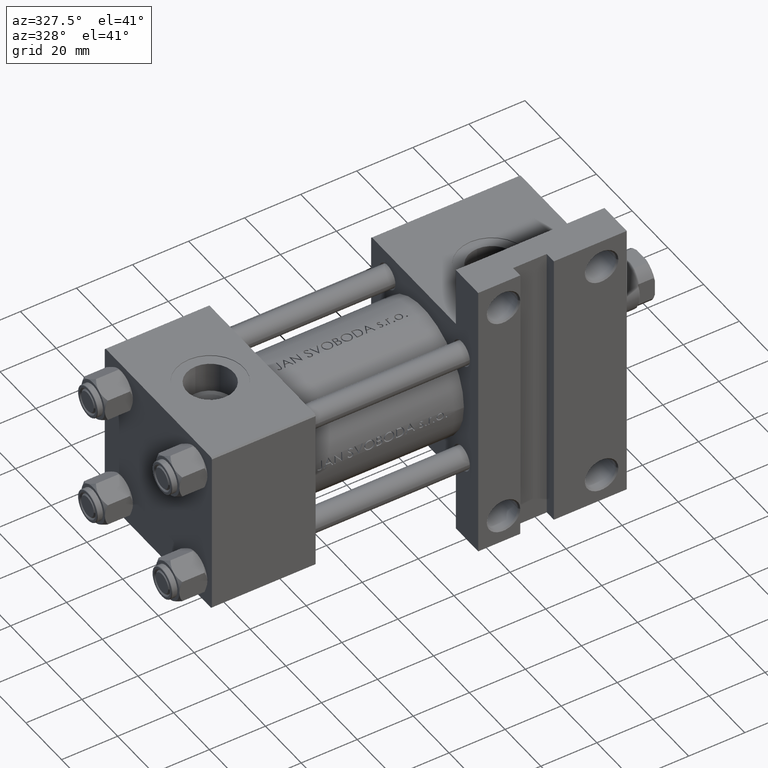
[diagram: clean part render]
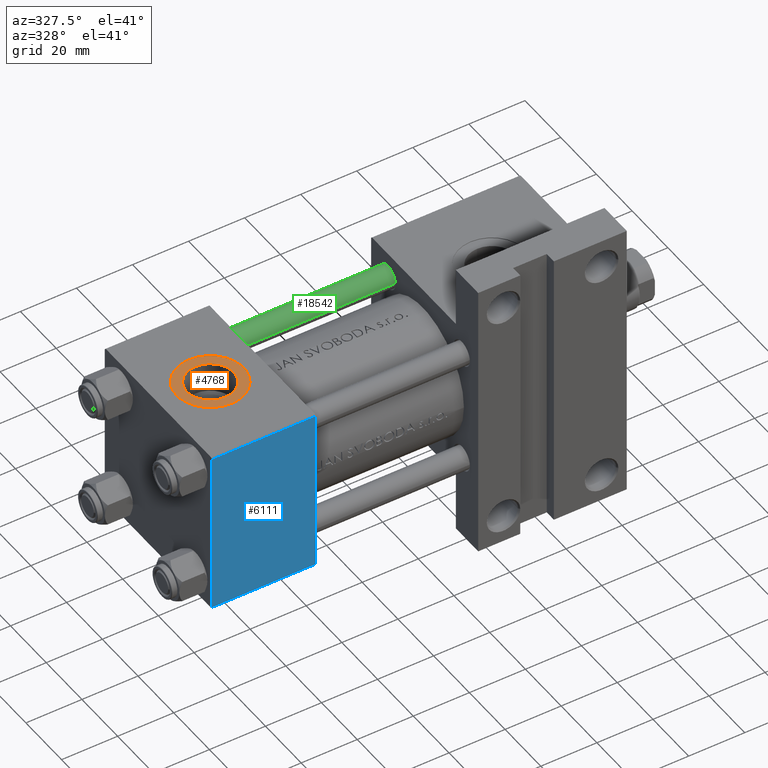
[diagram: same view with three faces highlighted in distinct colors, each labeled with its STEP entity id]
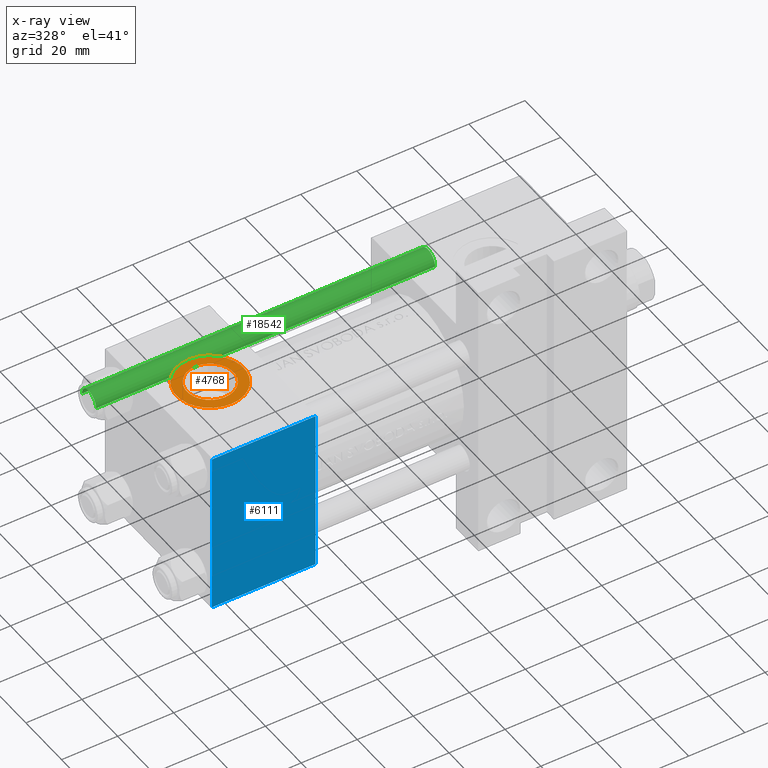
[diagram: x-ray of the same camera — body ghosted, the three highlighted faces saturated]
A machine part, auxiliary view with three faces highlighted in distinct colors.
The next image is the same camera in x-ray (body ghosted, the three faces saturated) — at least one of them is partly hidden behind the body in this view.
Their STEP definitions:

[orange] entity #4768 — the highlighted planar face has unit normal (0, -0, 1).
#182 = CARTESIAN_POINT ( 'NONE',  ( 18.50000000000000000, -29.80000000000000071, 1.734723475976807403E-17 ) ) ;
#230 = FACE_OUTER_BOUND ( 'NONE', #27709, .T. ) ;
#1417 = AXIS2_PLACEMENT_3D ( 'NONE', #21328, #43987, #12115 ) ;
#1943 = DIRECTION ( 'NONE',  ( 0.000000000000000000, -1.000000000000000000, -8.673617379884036705E-17 ) ) ;
#2434 = CARTESIAN_POINT ( 'NONE',  ( 18.50000000000000000, -29.80000000000000071, 1.734723475976808635E-17 ) ) ;
#4768 = ADVANCED_FACE ( 'NONE', ( #12323, #230 ), #15774, .T. ) ;
#4837 = EDGE_CURVE ( 'NONE', #42961, #33779, #38907, .T. ) ;
#4880 = DIRECTION ( 'NONE',  ( 0.000000000000000000, -1.000000000000000000, -8.673617379884036705E-17 ) ) ;
#6686 = CARTESIAN_POINT ( 'NONE',  ( 18.50000000000000000, -29.80000000000000071, -8.330000000000001847 ) ) ;
#10150 = DIRECTION ( 'NONE',  ( 0.000000000000000000, -1.000000000000000000, -8.673617379884036705E-17 ) ) ;
#12035 = DIRECTION ( 'NONE',  ( 0.000000000000000000, 0.000000000000000000, -1.000000000000000000 ) ) ;
#12115 = DIRECTION ( 'NONE',  ( 0.000000000000000000, 0.000000000000000000, -1.000000000000000000 ) ) ;
#12323 = FACE_BOUND ( 'NONE', #16380, .T. ) ;
#14409 = CIRCLE ( 'NONE', #37232, 12.00000000000000178 ) ;
#15774 = PLANE ( 'NONE',  #16867 ) ;
#16380 = EDGE_LOOP ( 'NONE', ( #30713, #40806 ) ) ;
#16751 = DIRECTION ( 'NONE',  ( 0.000000000000000000, 0.000000000000000000, -1.000000000000000000 ) ) ;
#16867 = AXIS2_PLACEMENT_3D ( 'NONE', #31296, #45576, #34985 ) ;
#21214 = AXIS2_PLACEMENT_3D ( 'NONE', #182, #4880, #12035 ) ;
#21328 = CARTESIAN_POINT ( 'NONE',  ( 18.50000000000000000, -29.80000000000000071, 1.734723475976808635E-17 ) ) ;
#21876 = EDGE_CURVE ( 'NONE', #39765, #40291, #47964, .T. ) ;
#24260 = CIRCLE ( 'NONE', #1417, 8.330000000000001847 ) ;
#25488 = ORIENTED_EDGE ( 'NONE', *, *, #26765, .T. ) ;
#26309 = ORIENTED_EDGE ( 'NONE', *, *, #21876, .T. ) ;
#26765 = EDGE_CURVE ( 'NONE', #40291, #39765, #14409, .T. ) ;
#27709 = EDGE_LOOP ( 'NONE', ( #25488, #26309 ) ) ;
#29105 = DIRECTION ( 'NONE',  ( 0.000000000000000000, 0.000000000000000000, -1.000000000000000000 ) ) ;
#29372 = CARTESIAN_POINT ( 'NONE',  ( 18.50000000000000000, -29.80000000000000071, -12.00000000000000178 ) ) ;
#30713 = ORIENTED_EDGE ( 'NONE', *, *, #4837, .F. ) ;
#31296 = CARTESIAN_POINT ( 'NONE',  ( 18.50000000000000000, -29.80000000000000071, 1.734723475976807403E-17 ) ) ;
#32624 = AXIS2_PLACEMENT_3D ( 'NONE', #2434, #1943, #16751 ) ;
#33253 = CARTESIAN_POINT ( 'NONE',  ( 18.50000000000000000, -29.80000000000000071, 12.00000000000000178 ) ) ;
#33779 = VERTEX_POINT ( 'NONE', #43146 ) ;
#34985 = DIRECTION ( 'NONE',  ( 0.000000000000000000, 8.673617379884036705E-17, -1.000000000000000000 ) ) ;
#37232 = AXIS2_PLACEMENT_3D ( 'NONE', #40429, #10150, #29105 ) ;
#38907 = CIRCLE ( 'NONE', #32624, 8.330000000000001847 ) ;
#39765 = VERTEX_POINT ( 'NONE', #33253 ) ;
#40291 = VERTEX_POINT ( 'NONE', #29372 ) ;
#40429 = CARTESIAN_POINT ( 'NONE',  ( 18.50000000000000000, -29.80000000000000071, 1.734723475976807403E-17 ) ) ;
#40806 = ORIENTED_EDGE ( 'NONE', *, *, #47131, .F. ) ;
#42961 = VERTEX_POINT ( 'NONE', #6686 ) ;
#43146 = CARTESIAN_POINT ( 'NONE',  ( 18.50000000000000000, -29.80000000000000071, 8.330000000000001847 ) ) ;
#43987 = DIRECTION ( 'NONE',  ( 0.000000000000000000, -1.000000000000000000, -8.673617379884036705E-17 ) ) ;
#45576 = DIRECTION ( 'NONE',  ( 0.000000000000000000, -1.000000000000000000, -8.673617379884036705E-17 ) ) ;
#47131 = EDGE_CURVE ( 'NONE', #33779, #42961, #24260, .T. ) ;
#47964 = CIRCLE ( 'NONE', #21214, 12.00000000000000178 ) ;

[blue] entity #6111 — the highlighted planar face has unit normal (0, -1, -0).
#539 = CARTESIAN_POINT ( 'NONE',  ( 0.000000000000000000, -29.50000000000001066, -30.00000000000000711 ) ) ;
#3084 = VECTOR ( 'NONE', #4499, 1000.000000000000000 ) ;
#3688 = CARTESIAN_POINT ( 'NONE',  ( 37.00000000000000000, 29.49999999999997868, -30.00000000000000000 ) ) ;
#4499 = DIRECTION ( 'NONE',  ( -1.000000000000000000, 0.000000000000000000, 0.000000000000000000 ) ) ;
#6111 = ADVANCED_FACE ( 'NONE', ( #13968 ), #36622, .T. ) ;
#7077 = DIRECTION ( 'NONE',  ( 0.000000000000000000, 1.156482317317871725E-16, -1.000000000000000000 ) ) ;
#7302 = VERTEX_POINT ( 'NONE', #38761 ) ;
#7353 = ORIENTED_EDGE ( 'NONE', *, *, #39009, .T. ) ;
#7753 = EDGE_CURVE ( 'NONE', #17144, #7302, #39671, .T. ) ;
#8543 = CARTESIAN_POINT ( 'NONE',  ( 37.00000000000000000, 29.49999999999997868, -30.00000000000000000 ) ) ;
#9121 = VERTEX_POINT ( 'NONE', #3688 ) ;
#10590 = CARTESIAN_POINT ( 'NONE',  ( 0.000000000000000000, 29.49999999999997868, -30.00000000000000000 ) ) ;
#11446 = VECTOR ( 'NONE', #31797, 1000.000000000000000 ) ;
#13968 = FACE_OUTER_BOUND ( 'NONE', #20131, .T. ) ;
#16200 = ORIENTED_EDGE ( 'NONE', *, *, #20414, .T. ) ;
#16892 = DIRECTION ( 'NONE',  ( 1.000000000000000000, 0.000000000000000000, 0.000000000000000000 ) ) ;
#17144 = VERTEX_POINT ( 'NONE', #10590 ) ;
#18738 = VERTEX_POINT ( 'NONE', #48402 ) ;
#19871 = DIRECTION ( 'NONE',  ( 0.000000000000000000, -1.000000000000000000, -1.156482317317871725E-16 ) ) ;
#20131 = EDGE_LOOP ( 'NONE', ( #20309, #7353, #22061, #16200 ) ) ;
#20309 = ORIENTED_EDGE ( 'NONE', *, *, #7753, .F. ) ;
#20414 = EDGE_CURVE ( 'NONE', #18738, #7302, #34564, .T. ) ;
#22061 = ORIENTED_EDGE ( 'NONE', *, *, #47813, .T. ) ;
#23507 = VECTOR ( 'NONE', #19871, 1000.000000000000000 ) ;
#23987 = AXIS2_PLACEMENT_3D ( 'NONE', #36868, #7077, #29001 ) ;
#27500 = LINE ( 'NONE', #8543, #42898 ) ;
#29001 = DIRECTION ( 'NONE',  ( 0.000000000000000000, 1.000000000000000000, 1.156482317317871725E-16 ) ) ;
#31557 = CARTESIAN_POINT ( 'NONE',  ( 0.000000000000000000, 29.99999999999999289, -30.00000000000000000 ) ) ;
#31797 = DIRECTION ( 'NONE',  ( 0.000000000000000000, -1.000000000000000000, -1.156482317317871725E-16 ) ) ;
#34564 = LINE ( 'NONE', #539, #3084 ) ;
#36622 = PLANE ( 'NONE',  #23987 ) ;
#36868 = CARTESIAN_POINT ( 'NONE',  ( 37.00000000000000000, 29.99999999999999289, -30.00000000000000000 ) ) ;
#38606 = LINE ( 'NONE', #42052, #23507 ) ;
#38761 = CARTESIAN_POINT ( 'NONE',  ( 0.000000000000000000, -29.50000000000000000, -30.00000000000000711 ) ) ;
#39009 = EDGE_CURVE ( 'NONE', #17144, #9121, #27500, .T. ) ;
#39671 = LINE ( 'NONE', #31557, #11446 ) ;
#42052 = CARTESIAN_POINT ( 'NONE',  ( 37.00000000000000000, 29.99999999999999289, -30.00000000000000000 ) ) ;
#42898 = VECTOR ( 'NONE', #16892, 1000.000000000000000 ) ;
#47813 = EDGE_CURVE ( 'NONE', #9121, #18738, #38606, .T. ) ;
#48402 = CARTESIAN_POINT ( 'NONE',  ( 37.00000000000000000, -29.50000000000000000, -30.00000000000000711 ) ) ;

[green] entity #18542 — the highlighted cylindrical surface (edge-blend (fillet) strip) has radius 4 mm, axis along (1, -0, 0).
#1103 = DIRECTION ( 'NONE',  ( 0.000000000000000000, 0.000000000000000000, -1.000000000000000000 ) ) ;
#3397 = ORIENTED_EDGE ( 'NONE', *, *, #33199, .T. ) ;
#5162 = EDGE_CURVE ( 'NONE', #21765, #6072, #39354, .T. ) ;
#5607 = CARTESIAN_POINT ( 'NONE',  ( 4.000000000000000000, 4.898587196589411843E-16, 122.0000000000000000 ) ) ;
#6072 = VERTEX_POINT ( 'NONE', #42812 ) ;
#7824 = FACE_OUTER_BOUND ( 'NONE', #29273, .T. ) ;
#8300 = DIRECTION ( 'NONE',  ( -1.000000000000000000, 0.000000000000000000, 0.000000000000000000 ) ) ;
#9790 = DIRECTION ( 'NONE',  ( -0.000000000000000000, -0.000000000000000000, -1.000000000000000000 ) ) ;
#12225 = CARTESIAN_POINT ( 'NONE',  ( 0.000000000000000000, 0.000000000000000000, 121.5000000000000426 ) ) ;
#12767 = DIRECTION ( 'NONE',  ( -0.000000000000000000, -0.000000000000000000, 1.000000000000000000 ) ) ;
#15396 = EDGE_CURVE ( 'NONE', #21765, #41619, #38304, .T. ) ;
#17067 = AXIS2_PLACEMENT_3D ( 'NONE', #12225, #1103, #31188 ) ;
#18542 = ADVANCED_FACE ( 'NONE', ( #7824 ), #26773, .T. ) ;
#19502 = EDGE_CURVE ( 'NONE', #41619, #37882, #28198, .T. ) ;
#21158 = ORIENTED_EDGE ( 'NONE', *, *, #15396, .T. ) ;
#21765 = VERTEX_POINT ( 'NONE', #26932 ) ;
#24095 = CARTESIAN_POINT ( 'NONE',  ( 0.000000000000000000, 0.000000000000000000, 0.5000000000000559552 ) ) ;
#24862 = ORIENTED_EDGE ( 'NONE', *, *, #5162, .F. ) ;
#25242 = CARTESIAN_POINT ( 'NONE',  ( -4.000000000000000000, 0.000000000000000000, 0.5000000000000559552 ) ) ;
#26773 = CYLINDRICAL_SURFACE ( 'NONE', #28229, 4.000000000000000000 ) ;
#26932 = CARTESIAN_POINT ( 'NONE',  ( 4.000000000000000000, 4.898587196589411843E-16, 121.5000000000000426 ) ) ;
#28198 = LINE ( 'NONE', #43702, #39254 ) ;
#28229 = AXIS2_PLACEMENT_3D ( 'NONE', #30462, #45238, #8300 ) ;
#29273 = EDGE_LOOP ( 'NONE', ( #24862, #21158, #39620, #3397 ) ) ;
#30462 = CARTESIAN_POINT ( 'NONE',  ( 0.000000000000000000, 0.000000000000000000, 122.0000000000000000 ) ) ;
#31021 = VECTOR ( 'NONE', #9790, 1000.000000000000000 ) ;
#31188 = DIRECTION ( 'NONE',  ( 1.000000000000000000, 0.000000000000000000, 0.000000000000000000 ) ) ;
#33199 = EDGE_CURVE ( 'NONE', #37882, #6072, #48269, .T. ) ;
#37882 = VERTEX_POINT ( 'NONE', #25242 ) ;
#38081 = AXIS2_PLACEMENT_3D ( 'NONE', #24095, #12767, #42346 ) ;
#38304 = CIRCLE ( 'NONE', #17067, 4.000000000000000000 ) ;
#39254 = VECTOR ( 'NONE', #43458, 1000.000000000000000 ) ;
#39354 = LINE ( 'NONE', #5607, #31021 ) ;
#39620 = ORIENTED_EDGE ( 'NONE', *, *, #19502, .T. ) ;
#40240 = CARTESIAN_POINT ( 'NONE',  ( -4.000000000000000000, 0.000000000000000000, 121.5000000000000426 ) ) ;
#41619 = VERTEX_POINT ( 'NONE', #40240 ) ;
#42346 = DIRECTION ( 'NONE',  ( 1.000000000000000000, 0.000000000000000000, 0.000000000000000000 ) ) ;
#42812 = CARTESIAN_POINT ( 'NONE',  ( 4.000000000000000000, 4.898587196589411843E-16, 0.5000000000000559552 ) ) ;
#43458 = DIRECTION ( 'NONE',  ( -0.000000000000000000, -0.000000000000000000, -1.000000000000000000 ) ) ;
#43702 = CARTESIAN_POINT ( 'NONE',  ( -4.000000000000000000, 0.000000000000000000, 122.0000000000000000 ) ) ;
#45238 = DIRECTION ( 'NONE',  ( -0.000000000000000000, -0.000000000000000000, -1.000000000000000000 ) ) ;
#48269 = CIRCLE ( 'NONE', #38081, 4.000000000000000000 ) ;